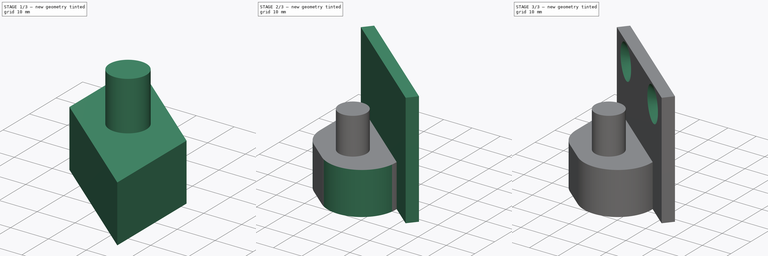
[diagram: build sequence overview — one tinted view per stage of 3, left to right]
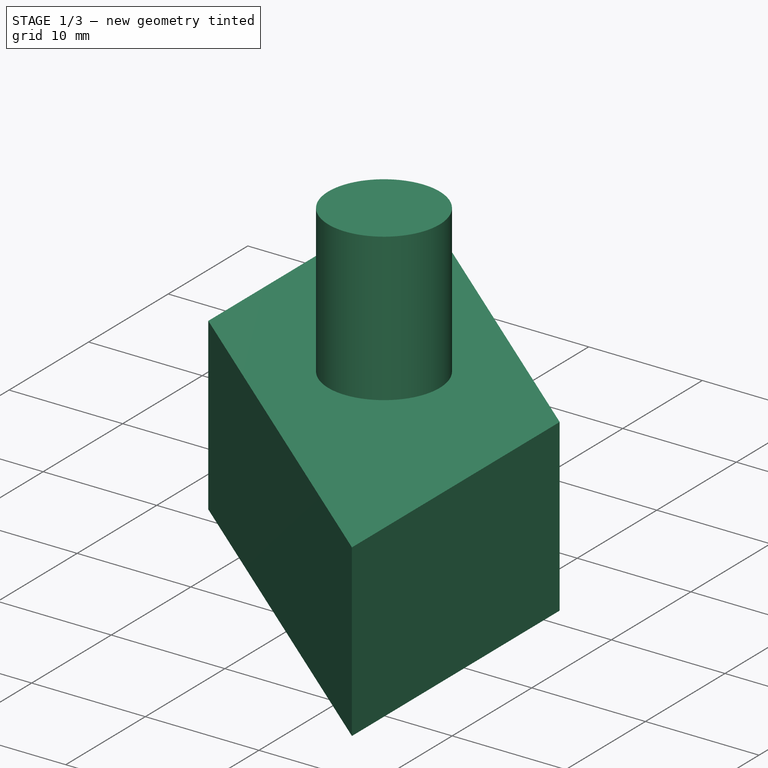
[diagram: stage 1 of 3 — iso view after this stage's code; geometry added in this stage tinted green]
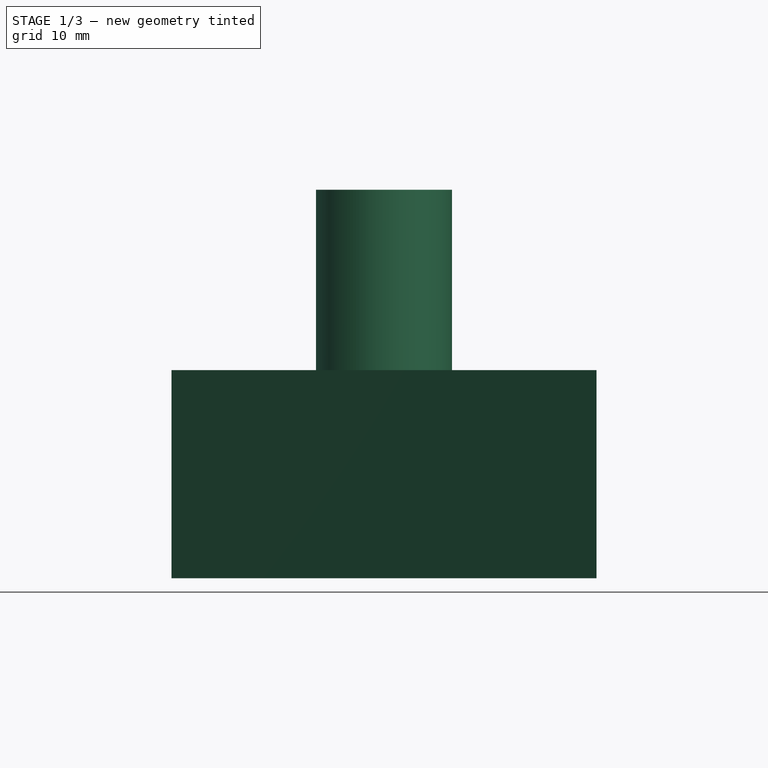
[diagram: stage 1 of 3 — front view after this stage's code; geometry added in this stage tinted green]
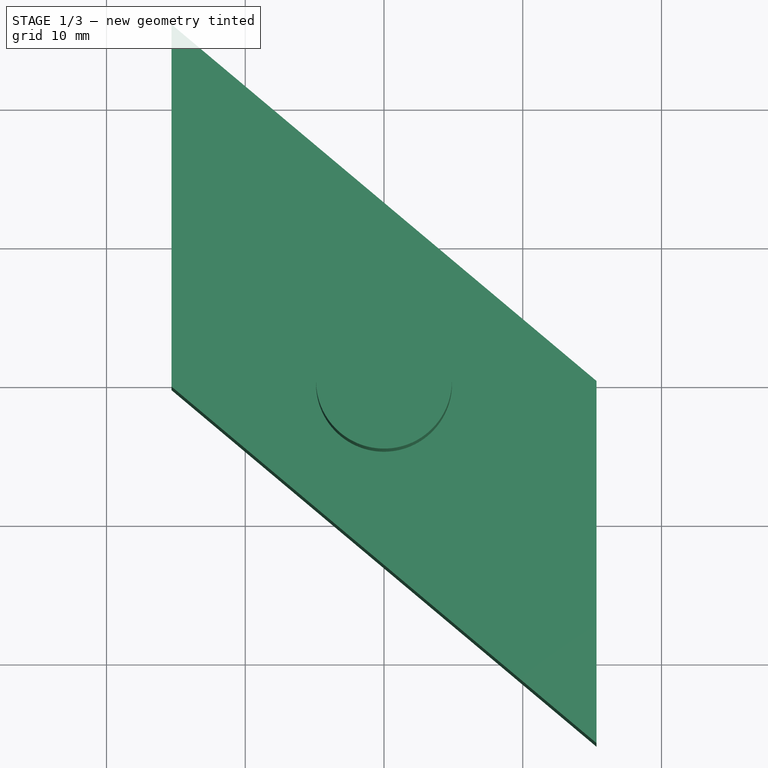
[diagram: stage 1 of 3 — top view after this stage's code; geometry added in this stage tinted green]
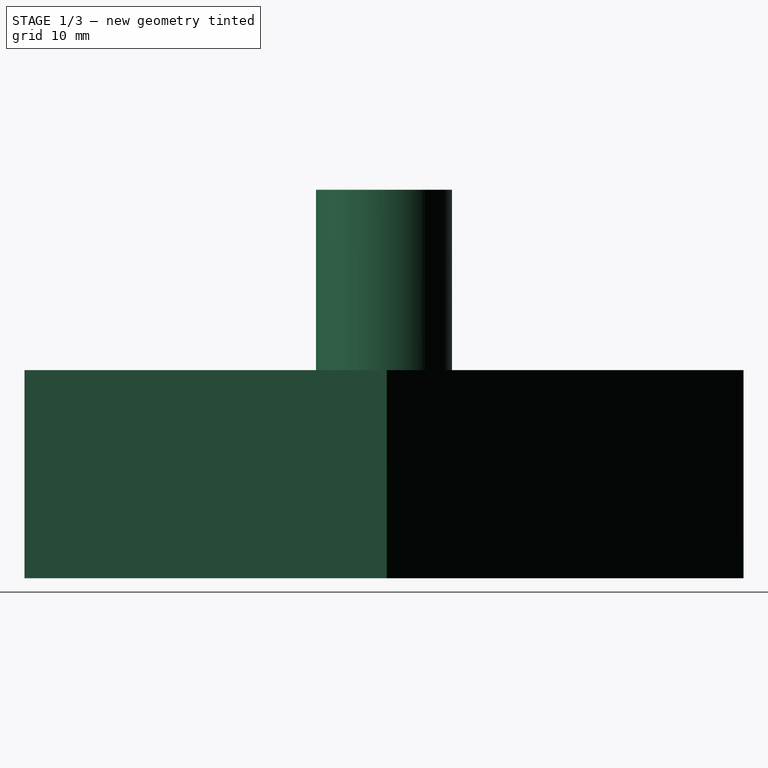
[diagram: stage 1 of 3 — right view after this stage's code; geometry added in this stage tinted green]
FCSTD DOCUMENT  (FreeCAD 2024.2R37179 (Git))
Label: Body
License: All rights reserved
LicenseURL: https://en.wikipedia.org/wiki/All_rights_reserved
objects: Sketcher::SketchObject×4, PartDesign::Pad×4, PartDesign::Fillet×1, PartDesign::Pocket×1, PartDesign::Chamfer×1, PartDesign::Body×1
note: 19 computed .brp shape members not serialized (recipe doc carries the construction recipe); baked Part::Feature solids carry a one-line shape summary decoded from their .brp

FEATURE [Sketcher::SketchObject] Sketch
  AttachmentSupport = -> [XY_Plane]
  FullyConstrained = true
  MapMode = 5
  sketch-geometry (6):
    g0: LineSegment StartX=-15.3209 StartY=25.9098 StartZ=0 EndX=15.3209 EndY=0.198321 EndZ=0
    g1: LineSegment StartX=15.3209 StartY=0.198321 StartZ=0 EndX=15.3209 EndY=-25.9098 EndZ=0
    g2: LineSegment StartX=15.3209 StartY=-25.9098 StartZ=0 EndX=-15.3209 EndY=-0.198321 EndZ=0
    g3: LineSegment StartX=-15.3209 StartY=-0.198321 StartZ=0 EndX=-15.3209 EndY=25.9098 EndZ=0
    g4: Circle CenterX=0 CenterY=0 CenterZ=0 NormalX=0 NormalY=0 NormalZ=1 AngleXU=0 Radius=5
    g5: LineSegment StartX=-15.3209 StartY=-0.198321 StartZ=0 EndX=-2.46514 EndY=15.1226 EndZ=0
  constraints (16):
    c: Vertical(g1)
    c: Angle(g3,g0) = 0.872665
    c: Coincident(g0,g1)
    c: Coincident(g0,g3)
    c: Coincident(g2,g3)
    c: Coincident(g2,g1)
    c: Angle(g3,g2) = 0.872665
    c: Parallel(g3,g1)
    c: Symmetric(g2,g0,g-1)
    c: Coincident(g4,g-1)
    c: Diameter(g4) = 10
    c: Distance(g0,g0) = 40
    c: Coincident(g2,g5)
    c: PointOnObject(g5,g0)
    c: Angle(g2,g5) = 1.5708
    c: Distance(g5,g5) = 20
FEATURE [PartDesign::Pad] Pad
  Direction = (0,0,1)
  Length = 15
  Length2 = 10
  Profile = -> Sketch
  ReferenceAxis = -> Sketch [N_Axis]
  Refine = true
  Suppressed = false
  Type = 0
FEATURE [Sketcher::SketchObject] Sketch001
  AttachmentSupport = -> [Pad]
  FullyConstrained = true
  MapMode = 5
  Placement = pos=(0,0,15) rot=(0,0,1;0rad)
  sketch-geometry (1):
    g0: Circle CenterX=0 CenterY=0 CenterZ=0 NormalX=0 NormalY=0 NormalZ=1 AngleXU=0 Radius=4.9
  constraints (2):
    c: Coincident(g0,g-1)
    c: Diameter(g0) = 9.8
FEATURE [PartDesign::Pad] Pad001
  BaseFeature = -> Pad
  Direction = (0,0,1)
  Length = 13
  Length2 = 10
  Profile = -> Sketch001
  ReferenceAxis = -> Sketch001 [N_Axis]
  Refine = true
  Suppressed = false
  Type = 0
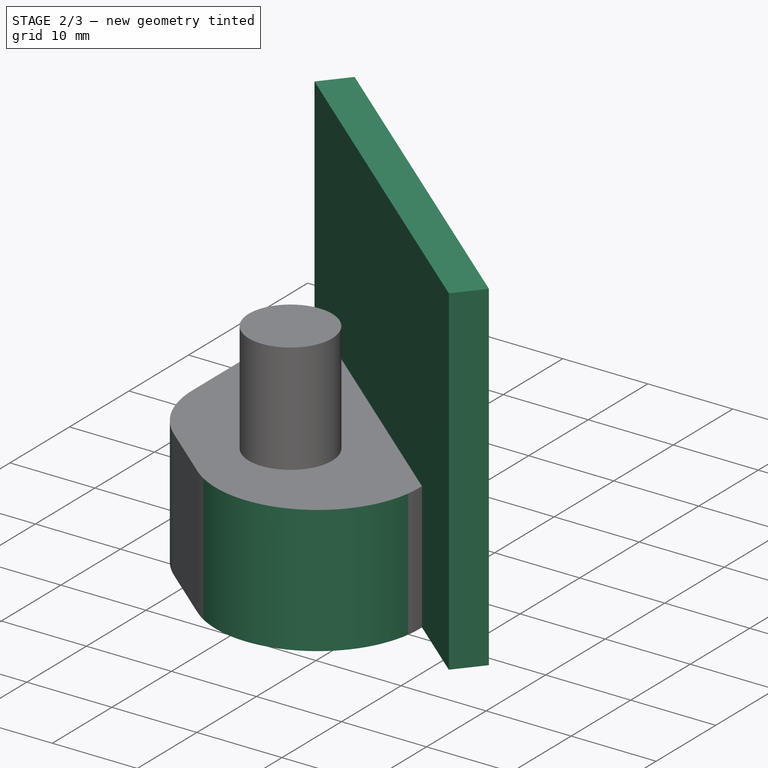
[diagram: stage 2 of 3 — iso view after this stage's code; geometry added in this stage tinted green]
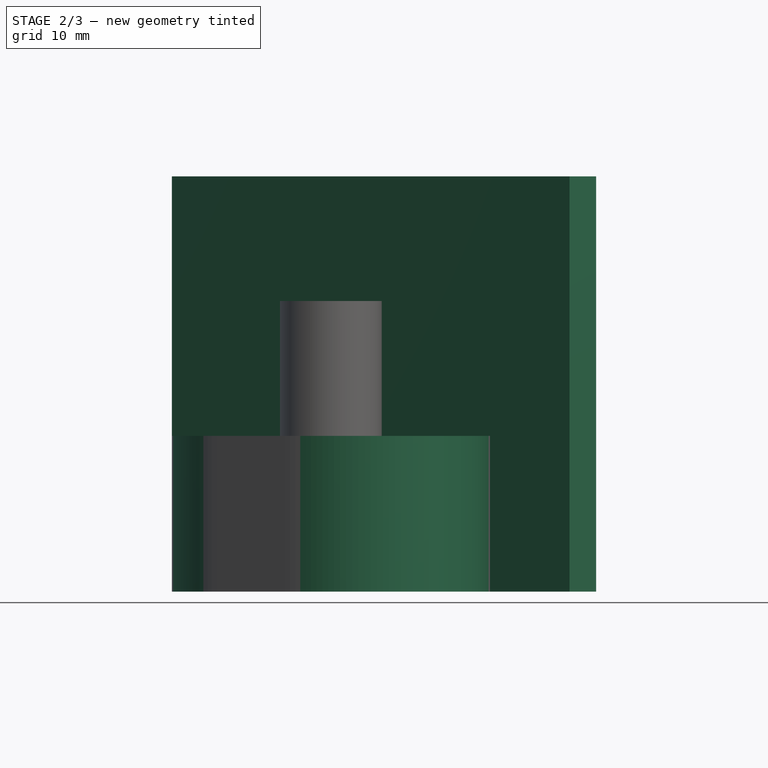
[diagram: stage 2 of 3 — front view after this stage's code; geometry added in this stage tinted green]
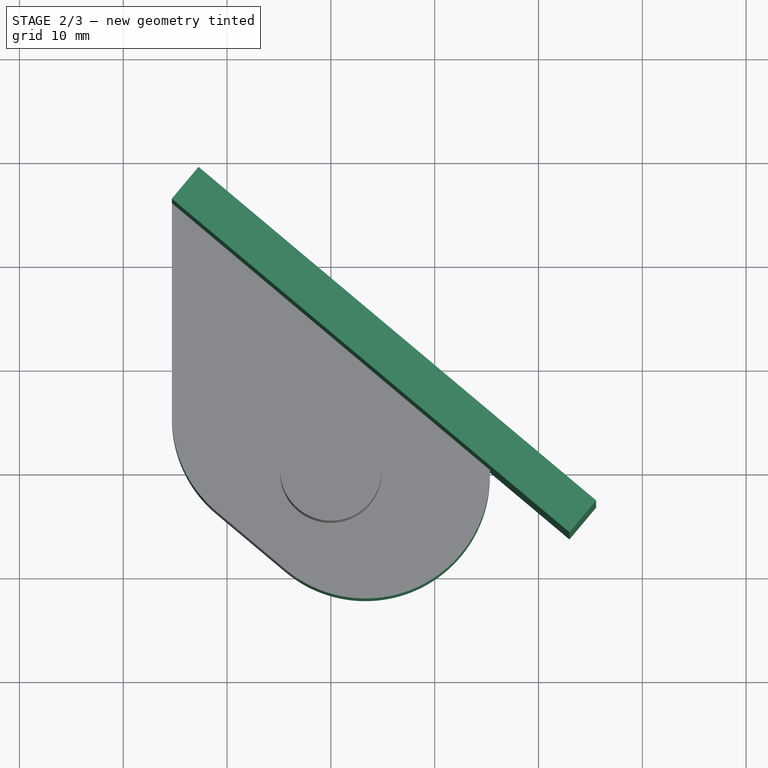
[diagram: stage 2 of 3 — top view after this stage's code; geometry added in this stage tinted green]
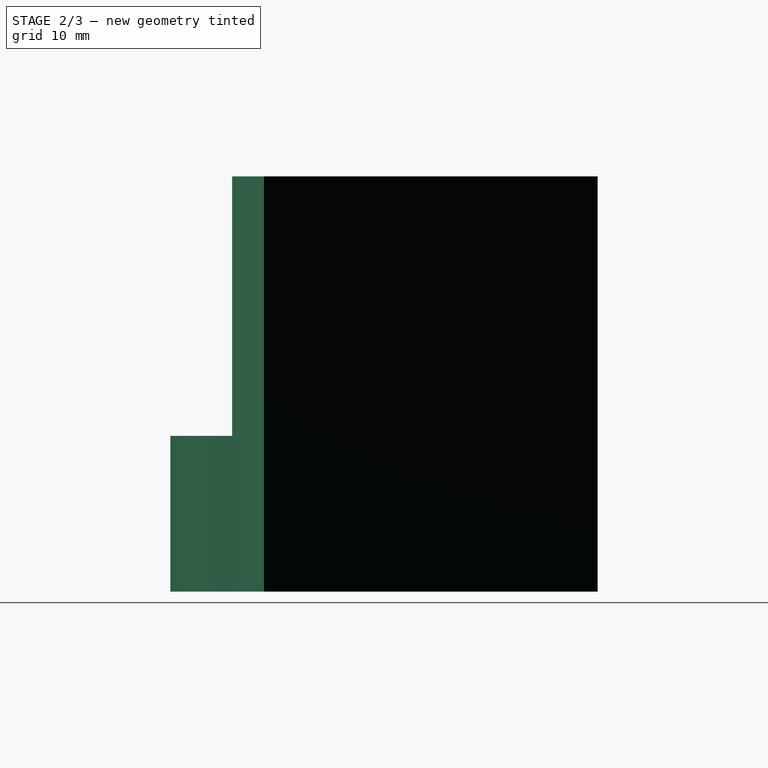
[diagram: stage 2 of 3 — right view after this stage's code; geometry added in this stage tinted green]
FEATURE [PartDesign::Fillet] Fillet
  Base = -> Pad001 [Edge5,Edge8]
  BaseFeature = -> Pad001
  Radius = 12
  Refine = true
  SupportTransform = false
  Suppressed = false
  UseAllEdges = false
FEATURE [Sketcher::SketchObject] Sketch002
  AttachmentSupport = -> [Fillet]
  ExternalGeometry = -> [Fillet]
  FullyConstrained = true
  MapMode = 5
  Placement = pos=(6.42788,7.66044,0) rot=(0.249244,0.684791,0.684791;2.65306rad)
  sketch-geometry (4):
    g0: LineSegment StartX=-11.609 StartY=0 StartZ=0 EndX=28.391 EndY=8e-16 EndZ=0
    g1: LineSegment StartX=28.391 StartY=8e-16 StartZ=0 EndX=28.391 EndY=40 EndZ=0
    g2: LineSegment StartX=28.391 StartY=40 StartZ=0 EndX=-11.609 EndY=40 EndZ=0
    g3: LineSegment StartX=-11.609 StartY=40 StartZ=0 EndX=-11.609 EndY=0 EndZ=0
  constraints (10):
    c: Coincident(g0,g1)
    c: Coincident(g1,g2)
    c: Coincident(g2,g3)
    c: Coincident(g3,g0)
    c: Horizontal(g2)
    c: Vertical(g1)
    c: Vertical(g3)
    c: Coincident(g0,g-3)
    c: Coincident(g0,g-4)
    c: DistanceY(g1,g1) = 40
FEATURE [PartDesign::Pad] Pad002
  BaseFeature = -> Fillet
  Direction = (0.642788,0.766044,-1e-16)
  Length = 4
  Length2 = 10
  Profile = -> Sketch002
  ReferenceAxis = -> Sketch002 [N_Axis]
  Refine = true
  Suppressed = false
  Type = 0
FEATURE [PartDesign::Pad] Pad003
  BaseFeature = -> Pad002
  Direction = (0.766044,-0.642788,1e-16)
  Length = 10
  Length2 = 10
  Profile = -> Pad002 [Face12]
  Refine = true
  Suppressed = false
  Type = 0
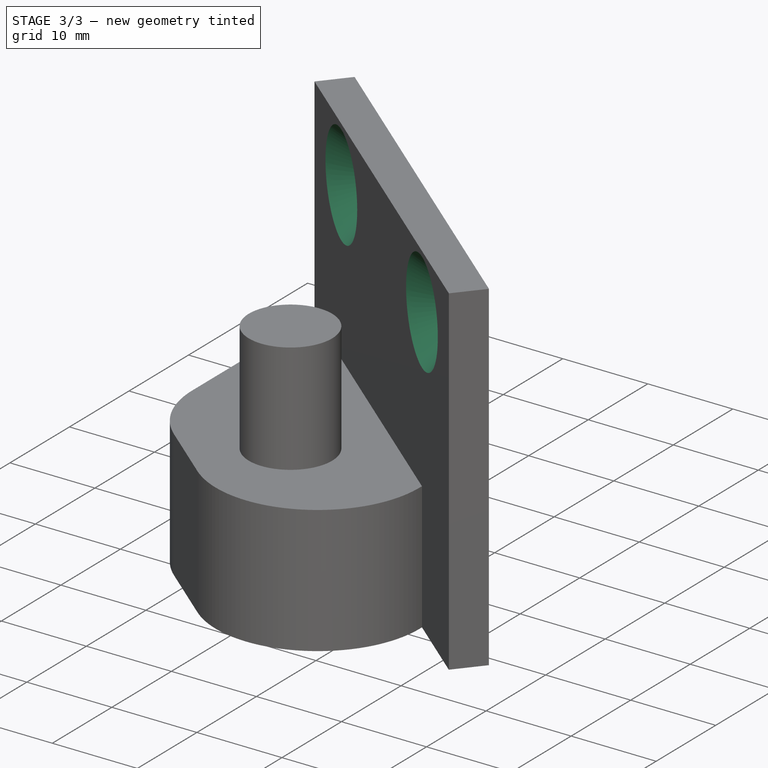
[diagram: stage 3 of 3 — iso view after this stage's code; geometry added in this stage tinted green]
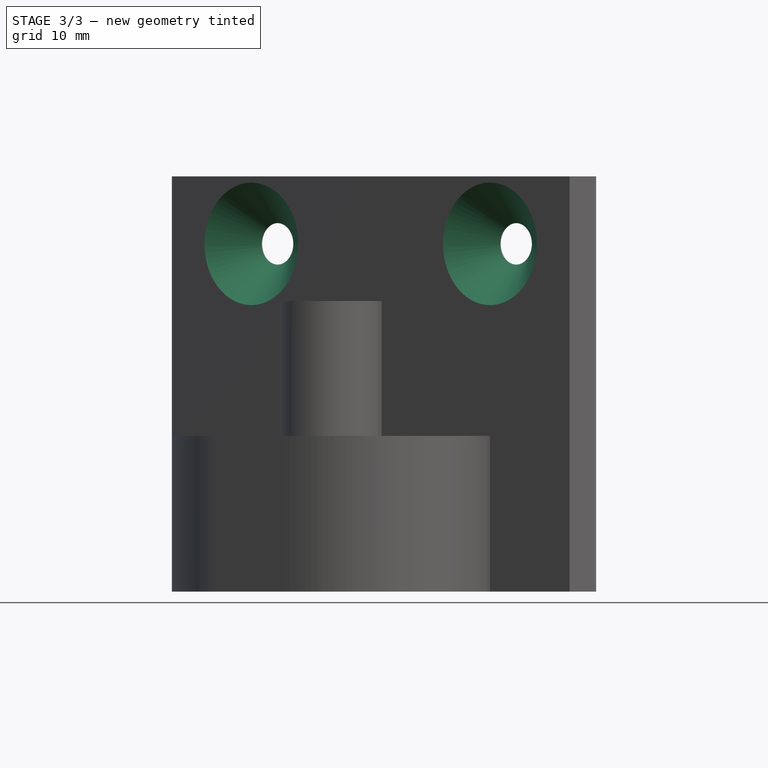
[diagram: stage 3 of 3 — front view after this stage's code; geometry added in this stage tinted green]
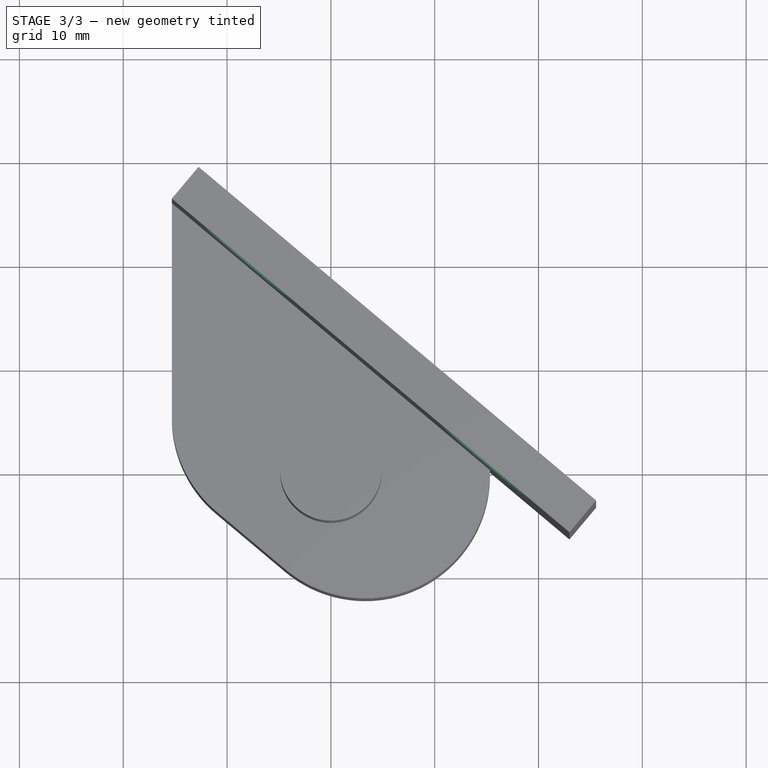
[diagram: stage 3 of 3 — top view after this stage's code; geometry added in this stage tinted green]
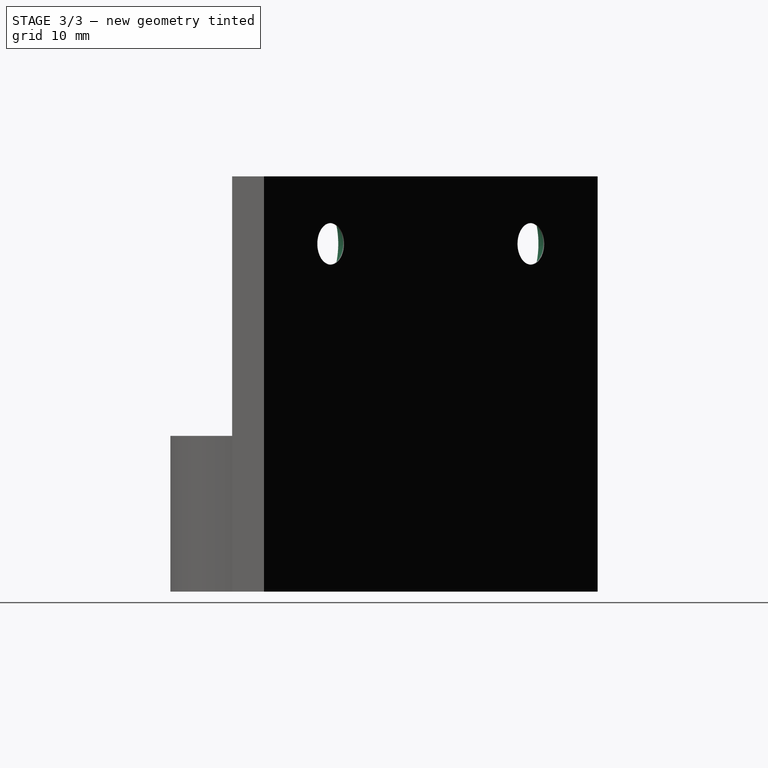
[diagram: stage 3 of 3 — right view after this stage's code; geometry added in this stage tinted green]
FEATURE [Sketcher::SketchObject] Sketch003
  AttachmentSupport = -> [Pad003]
  ExternalGeometry = -> [Pad003]
  FullyConstrained = true
  MapMode = 5
  Placement = pos=(6.42788,7.66044,-1.7e-15) rot=(0.889126,-0.323616,-0.323616;1.68804rad)
  sketch-geometry (2):
    g0: Circle CenterX=-18.391 CenterY=33.5 CenterZ=0 NormalX=0 NormalY=0 NormalZ=1 AngleXU=0 Radius=2
    g1: Circle CenterX=11.609 CenterY=33.5 CenterZ=0 NormalX=0 NormalY=0 NormalZ=1 AngleXU=0 Radius=2
  constraints (6):
    c: Equal(g0,g1)
    c: Diameter(g1) = 4
    c: DistanceX(g-3,g0) = 10
    c: DistanceX(g1,g-4) = 10
    c: DistanceY(g0,g-3) = 6.5
    c: Horizontal(g0,g1)
FEATURE [PartDesign::Pocket] Pocket
  BaseFeature = -> Pad003
  Direction = (0.642788,0.766044,-1e-16)
  Length = 5
  Length2 = 5
  Profile = -> Sketch003
  ReferenceAxis = -> Sketch003 [N_Axis]
  Refine = true
  Suppressed = false
  Type = 1
FEATURE [PartDesign::Chamfer] Chamfer
  Angle = 45
  Base = -> Pocket [Edge33,Edge34]
  BaseFeature = -> Pocket
  ChamferType = 0
  FlipDirection = false
  Refine = true
  Size = 3.9
  Size2 = 1
  SupportTransform = false
  Suppressed = false
  UseAllEdges = false
FEATURE [PartDesign::Body] Body
  Group = -> [Sketch,Pad,Sketch001,Pad001,Fillet,Sketch002,Pad002,Pad003,Sketch003,Pocket,Chamfer]
  Origin = -> Origin
  Tip = -> Chamfer
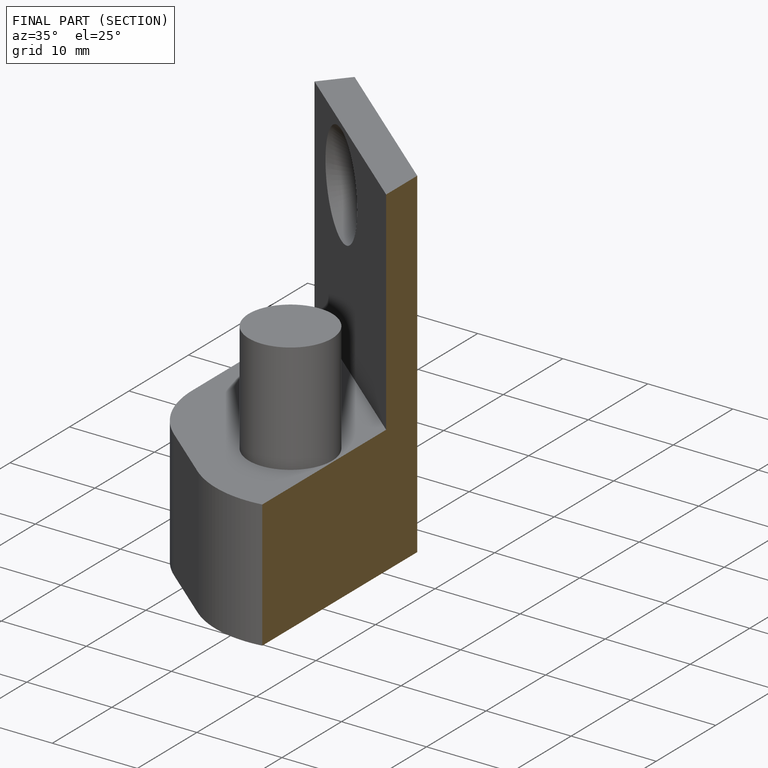
[diagram: finished part — half-section view (interior)]
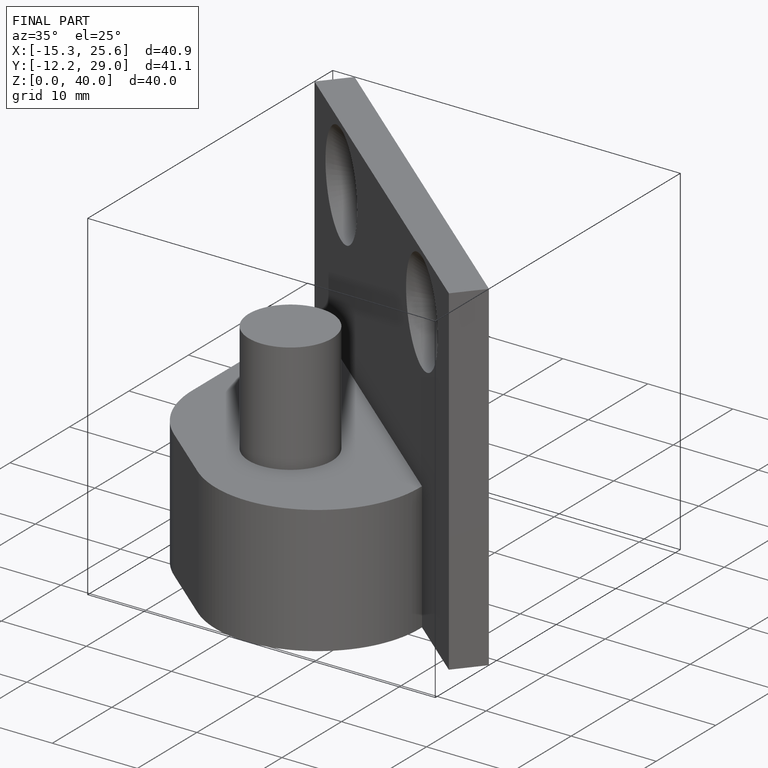
[diagram: finished part — iso view with bounding-box wireframe]
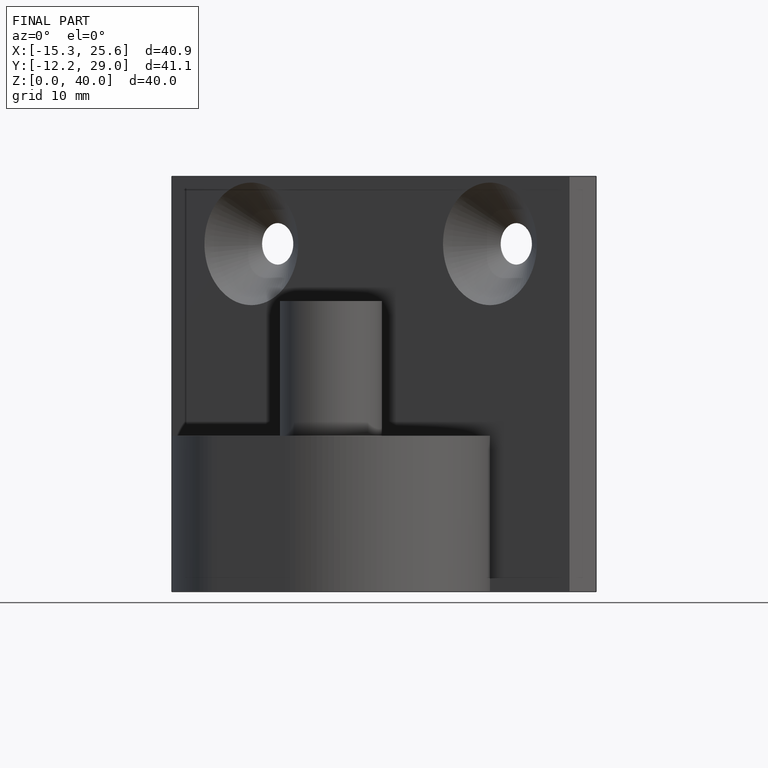
[diagram: finished part — front view with bounding-box wireframe]
